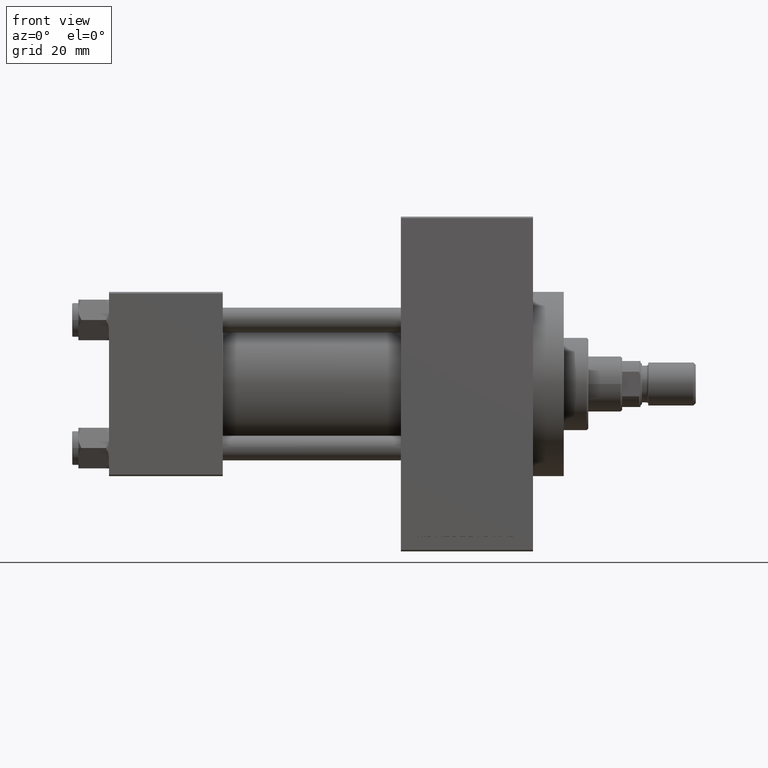
[diagram: clean part render]
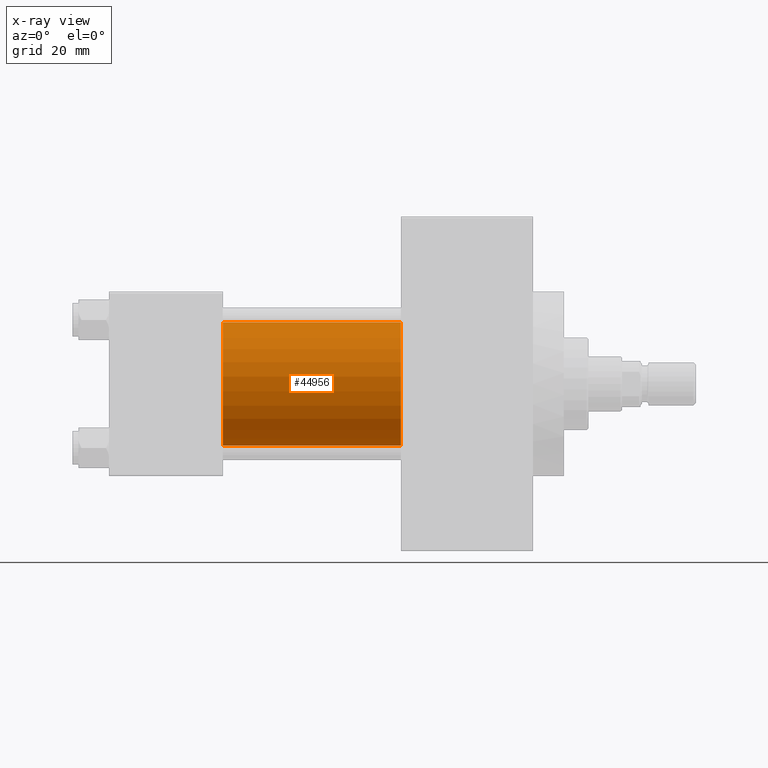
[diagram: x-ray — body ghosted, one internal face saturated and labeled with its STEP entity id]
A machine part, front view, then the same camera in x-ray: the body is ghosted and one INTERNAL B-rep face — a face not visible from any outside direction — is saturated and labeled: STEP entity #44956.
In plain terms, the highlighted cylindrical surface (partial cylindrical patch) has radius 20 mm, axis along (-1, -0, -0).
Its self-contained STEP definition (entity closure, byte-faithful):
#528 = EDGE_CURVE ( 'NONE', #19683, #38224, #35362, .T. ) ;
#547 = VECTOR ( 'NONE', #27624, 1000.000000000000000 ) ;
#3360 = DIRECTION ( 'NONE',  ( 1.000000000000000000, 0.000000000000000000, 0.000000000000000000 ) ) ;
#6372 = CARTESIAN_POINT ( 'NONE',  ( 95.00000000000000000, -1.527916156705046464E-16, -20.00000000000000000 ) ) ;
#9452 = VERTEX_POINT ( 'NONE', #25539 ) ;
#11253 = AXIS2_PLACEMENT_3D ( 'NONE', #44465, #40601, #26125 ) ;
#12078 = VERTEX_POINT ( 'NONE', #47464 ) ;
#13054 = CARTESIAN_POINT ( 'NONE',  ( 95.00000000000000000, -2.602085213965210642E-15, 20.00000000000000000 ) ) ;
#14350 = EDGE_CURVE ( 'NONE', #9452, #19683, #45397, .T. ) ;
#14723 = EDGE_LOOP ( 'NONE', ( #31596, #21360, #26586, #34472 ) ) ;
#18074 = DIRECTION ( 'NONE',  ( 0.000000000000000000, 0.000000000000000000, -1.000000000000000000 ) ) ;
#18221 = CYLINDRICAL_SURFACE ( 'NONE', #28911, 20.00000000000000000 ) ;
#19683 = VERTEX_POINT ( 'NONE', #45040 ) ;
#21235 = LINE ( 'NONE', #13054, #44841 ) ;
#21360 = ORIENTED_EDGE ( 'NONE', *, *, #528, .T. ) ;
#21390 = EDGE_CURVE ( 'NONE', #9452, #12078, #21235, .T. ) ;
#25539 = CARTESIAN_POINT ( 'NONE',  ( 95.00000000000000000, -2.602085213965210642E-15, 20.00000000000000000 ) ) ;
#25927 = DIRECTION ( 'NONE',  ( 0.000000000000000000, 0.000000000000000000, 1.000000000000000000 ) ) ;
#26125 = DIRECTION ( 'NONE',  ( 0.000000000000000000, 0.000000000000000000, -1.000000000000000000 ) ) ;
#26586 = ORIENTED_EDGE ( 'NONE', *, *, #45820, .F. ) ;
#27624 = DIRECTION ( 'NONE',  ( -1.000000000000000000, -0.000000000000000000, -0.000000000000000000 ) ) ;
#28911 = AXIS2_PLACEMENT_3D ( 'NONE', #33171, #32936, #25927 ) ;
#29777 = FACE_OUTER_BOUND ( 'NONE', #14723, .T. ) ;
#31367 = DIRECTION ( 'NONE',  ( -1.000000000000000000, -0.000000000000000000, -0.000000000000000000 ) ) ;
#31596 = ORIENTED_EDGE ( 'NONE', *, *, #14350, .T. ) ;
#32271 = AXIS2_PLACEMENT_3D ( 'NONE', #36416, #3360, #18074 ) ;
#32936 = DIRECTION ( 'NONE',  ( -1.000000000000000000, -0.000000000000000000, -0.000000000000000000 ) ) ;
#33171 = CARTESIAN_POINT ( 'NONE',  ( 95.00000000000000000, -2.602085213965210642E-15, 0.000000000000000000 ) ) ;
#34355 = CIRCLE ( 'NONE', #11253, 20.00000000000000000 ) ;
#34472 = ORIENTED_EDGE ( 'NONE', *, *, #21390, .F. ) ;
#35362 = LINE ( 'NONE', #6372, #547 ) ;
#35635 = CARTESIAN_POINT ( 'NONE',  ( 37.00000000000000000, -1.527916156705046464E-16, -20.00000000000000000 ) ) ;
#36416 = CARTESIAN_POINT ( 'NONE',  ( 95.00000000000000000, -2.602085213965210642E-15, 0.000000000000000000 ) ) ;
#38224 = VERTEX_POINT ( 'NONE', #35635 ) ;
#40601 = DIRECTION ( 'NONE',  ( 1.000000000000000000, 0.000000000000000000, 0.000000000000000000 ) ) ;
#44465 = CARTESIAN_POINT ( 'NONE',  ( 37.00000000000000000, -2.602085213965210642E-15, 0.000000000000000000 ) ) ;
#44841 = VECTOR ( 'NONE', #31367, 1000.000000000000000 ) ;
#44956 = ADVANCED_FACE ( 'NONE', ( #29777 ), #18221, .F. ) ;
#45040 = CARTESIAN_POINT ( 'NONE',  ( 95.00000000000000000, -1.527916156705046464E-16, -20.00000000000000000 ) ) ;
#45397 = CIRCLE ( 'NONE', #32271, 20.00000000000000000 ) ;
#45820 = EDGE_CURVE ( 'NONE', #12078, #38224, #34355, .T. ) ;
#47464 = CARTESIAN_POINT ( 'NONE',  ( 37.00000000000000000, -2.602085213965210642E-15, 20.00000000000000000 ) ) ;